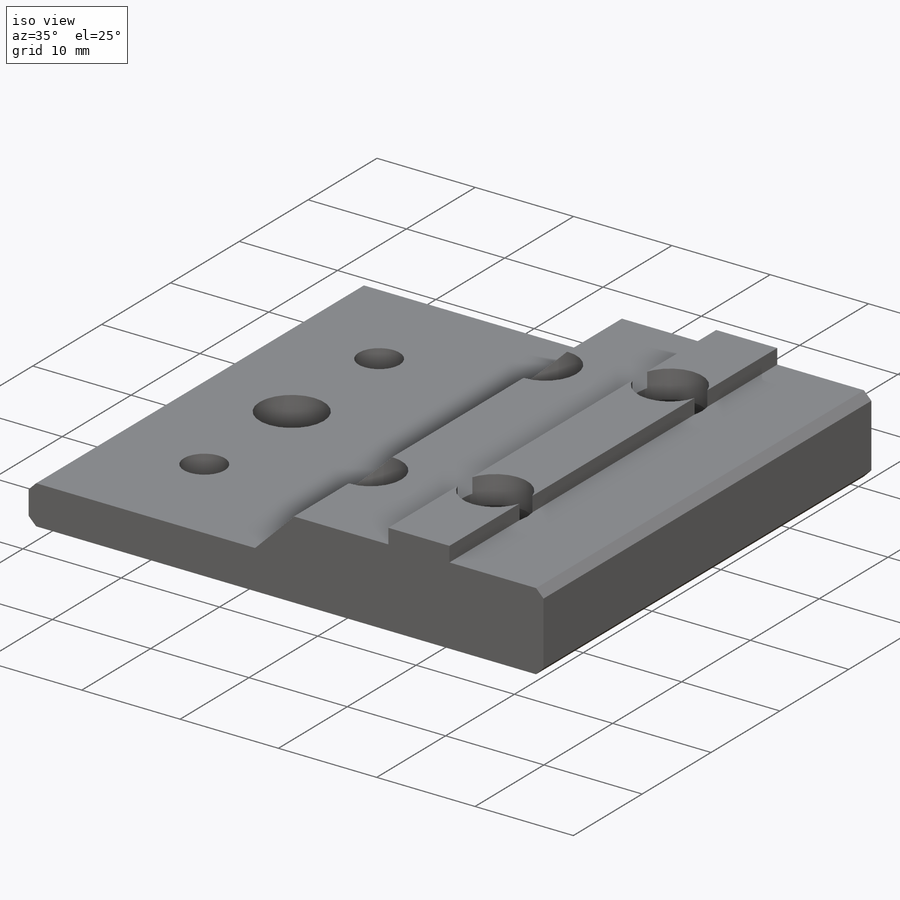
[diagram: iso view]
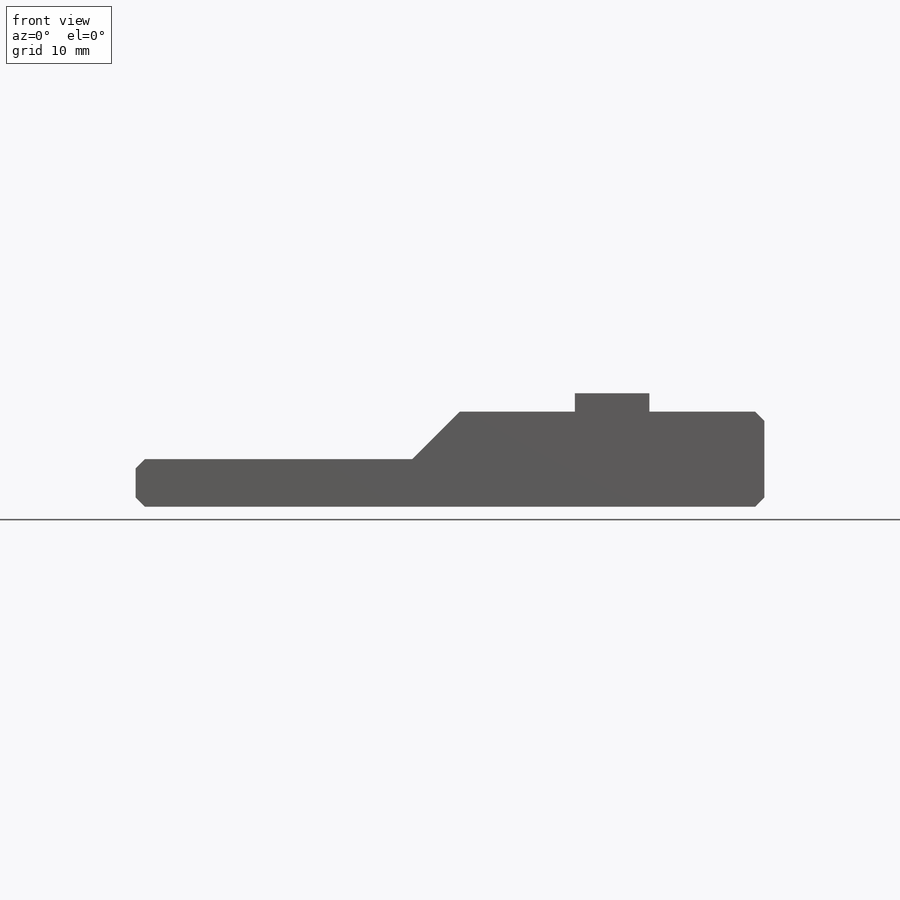
[diagram: front view]
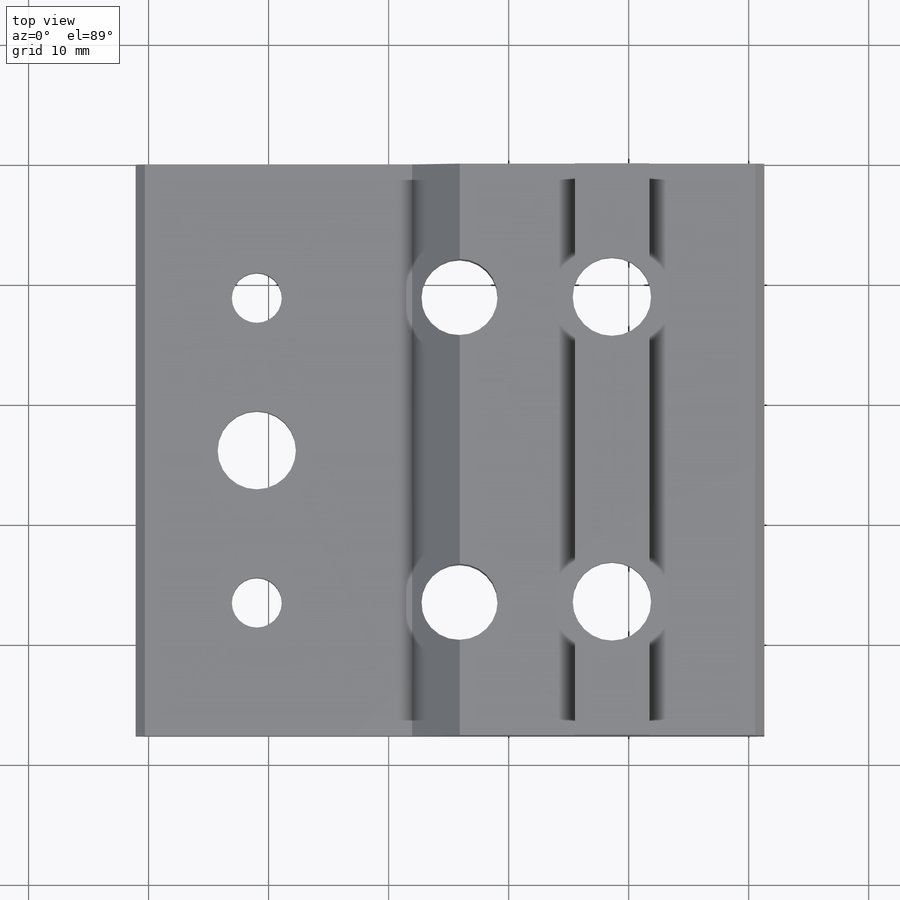
[diagram: top view]
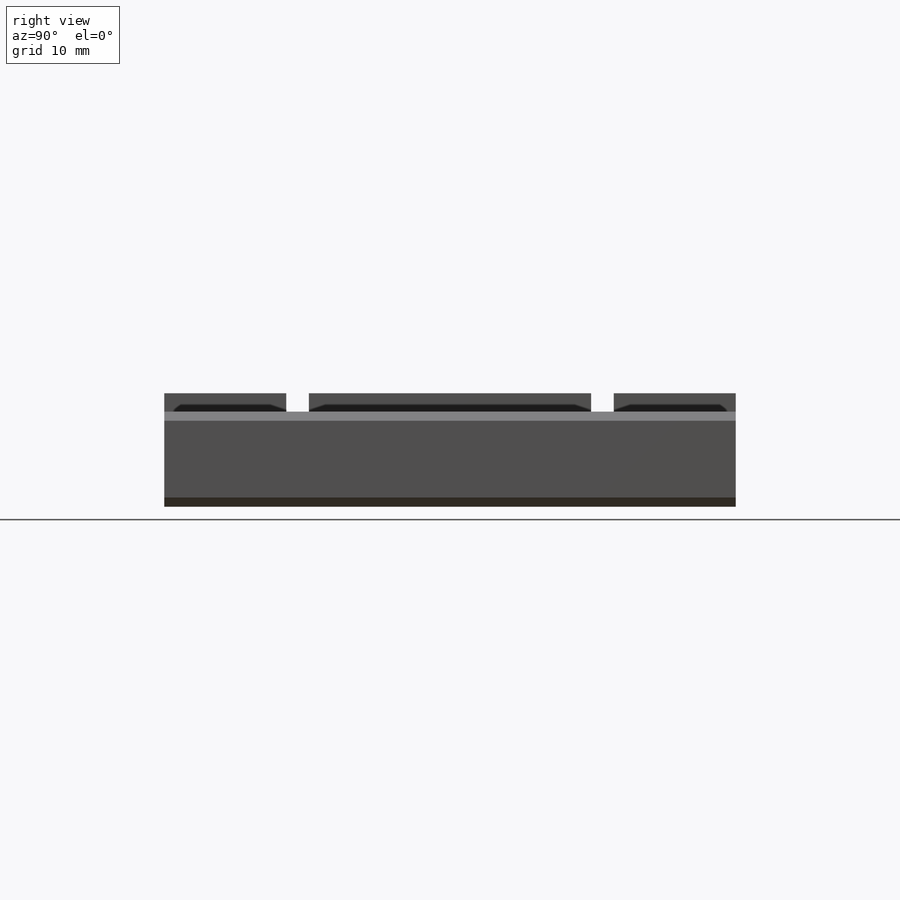
[diagram: right view]
SOLIDWORKS PART (.sldprt)
format: sldprt  version: not decoded by parser v0  size: 193,024 bytes
history: native  units: mm
features: sketch x5, cut_extrude x4, material x1, extrude x1 (+13 scaffold rows collapsed)
feature tree (24):
  scaffold x13  (default folders/planes/origin — collapsed)
  material  "Material <not specified>"
  sketch  "Sketch1"  dims[c1.D1=~6.400804mm c2.D1=90.0deg c2.D2=~6.400804mm c3.D2=90.0deg]
  extrude  "Extrude1"  Depth=47.625mm
  sketch  "Sketch2"  dims[D4=11.0998mm D1=12.7mm D2=11.1125mm D3=25.4mm]
  cut_extrude  "Cut-Extrude1"  Depth=47.625mm
  sketch  "Sketch3"  dims[D1=~5.475725mm]
  cut_extrude  "Cut-Extrude2"  Depth=6.604mm
  sketch  "Sketch4"  dims[D2=~3.139445mm D1=25.4mm]
  cut_extrude  "Cut-Extrude3"  [1 undecoded]
  sketch  "Sketch5"  dims[D2=~3.83656mm D1=42.291mm]
  cut_extrude  "Cut-Extrude4"  [1 undecoded]
decode coverage: 8 of 10 modeling features carry decoded parameters
note: ~ marks probable driven/reference dimensions
note: 2 parameter values undecoded
note: suppression state not decoded; provenance and decode notes live in map.json
